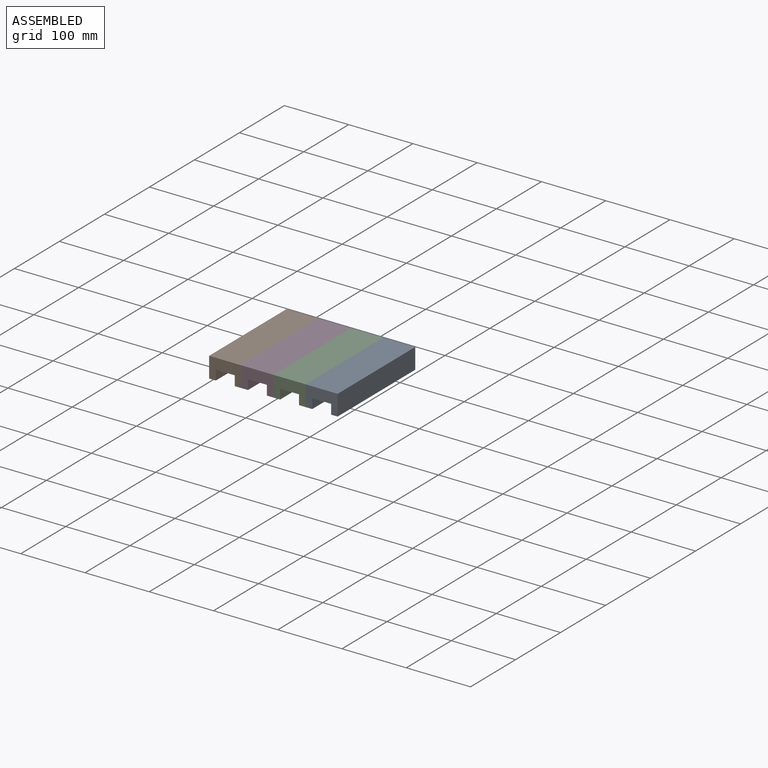
[diagram: assembled view]
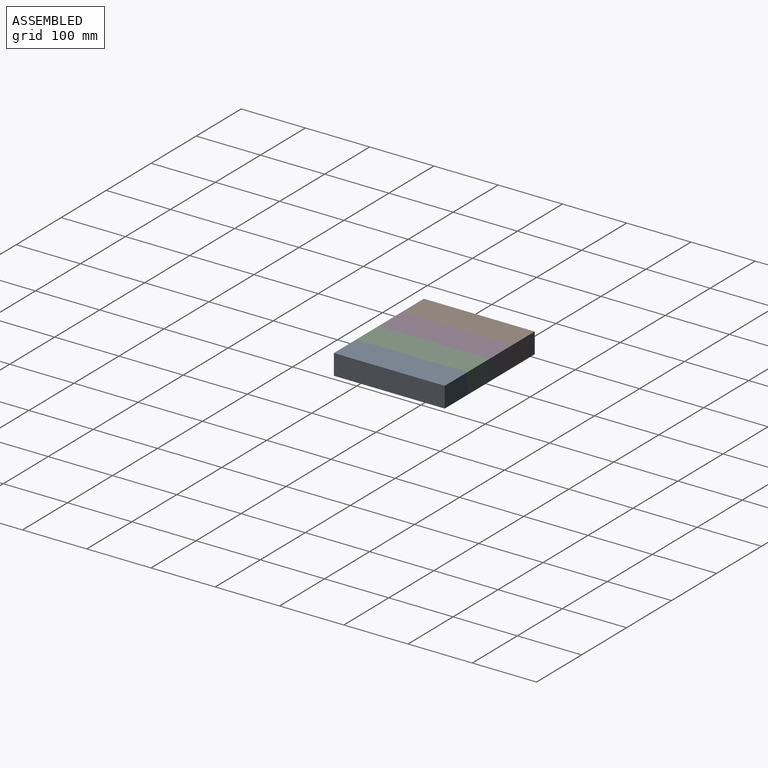
[diagram: assembled view, second angle]
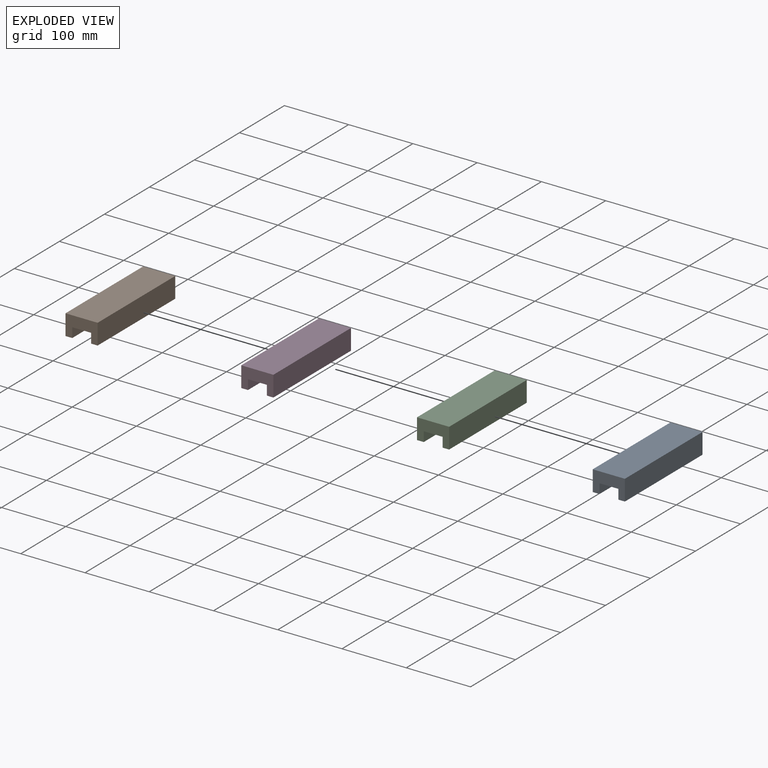
[diagram: exploded view]
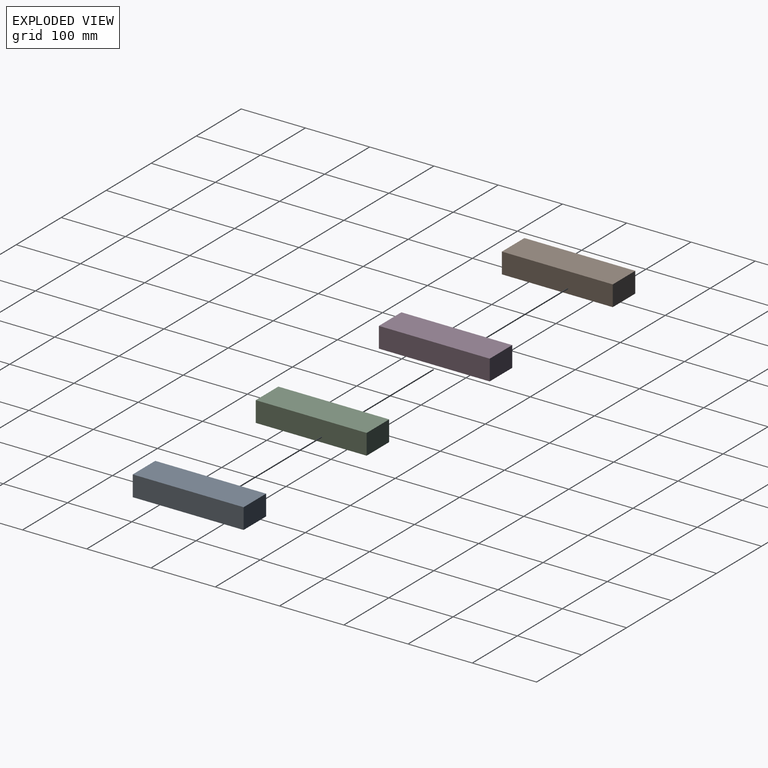
[diagram: exploded view, second angle]
ASSEMBLY  parts=4 mates=3
PART A: 24 faces, bbox 50x172.5x32 mm
  f0: plane 20.5x20.2mm, normal (0,0,-1), area 412.4mm2, adj f1,f2,f4,f11,f22,f23
  f1: plane 16.2x13.7mm, normal (0,-1,0), area 48.4mm2, adj f0,f5,f15,f16,f17,f22,f23
  f2: plane 18.5x13.7mm, normal (1,0,0), area 253.4mm2, adj f0,f4,f17,f22
  f3: plane 70x29.4mm, normal (0,0,-1), area 2056.3mm2, adj f4,f12,f13,f14,f20,f21
  f4: plane 25.4x15.2mm, normal (0,-1,0), area 109.3mm2, adj f0,f2,f3,f11,f17,f20,f21
  f5: cylinder r=7.8mm len=77mm, axis (0,1,0), area 1878mm2, adj f1,f6,f15,f16,f18,f19
  f6: plane 12.8x11.6mm, normal (0,-1,0), area 139.3mm2, adj f5,f17,f18,f19
  f7: plane 172.5x50mm, normal (0,0,1), area 8625mm2, adj f8,f9,f10,f14
  f8: plane 172.5x32mm, normal (-1,0,0), area 5520mm2, adj f7,f10,f14,f17
  f9: plane 172.5x32mm, normal (1,0,0), area 5520mm2, adj f7,f10,f14,f17
  f10: plane 50x32mm, normal (0,1,0), area 1600mm2, adj f7,f8,f9,f17
  f11: plane 18.5x13.7mm, normal (-1,0,0), area 253.4mm2, adj f0,f4,f17,f23
  f12: plane 68x15.2mm, normal (-1,0,0), area 1033.5mm2, adj f3,f14,f17,f20
  f13: plane 68x15.2mm, normal (1,0,0), area 1033.5mm2, adj f3,f14,f17,f21
  f14: plane 50x32mm, normal (0,-1,0), area 1153.2mm2, adj f3,f7,f8,f9,f12,f13,f17
  f15: plane 75x5mm, normal (-1,0,0), area 375mm2, adj f1,f5,f17,f19
  f16: plane 75x5mm, normal (1,0,0), area 375mm2, adj f1,f5,f17,f18
  f17: plane 172.5x50mm, normal (0,0,-1), area 4956.9mm2, adj f1,f2,f4,f6,f8,f9,f10,f11
  f18: cylinder r=2mm len=10.22mm, axis (0,0,-1), area 24.6mm2, adj f5,f6,f16,f17
  f19: cylinder r=2mm len=10.22mm, axis (0,0,-1), area 24.6mm2, adj f5,f6,f15,f17
  f20: cylinder r=2mm len=15.2mm, axis (0,0,-1), area 47.7mm2, adj f3,f4,f12,f17
  f21: cylinder r=2mm len=15.2mm, axis (0,0,-1), area 47.7mm2, adj f3,f4,f13,f17
  f22: cylinder r=2mm len=13.7mm, axis (0,0,-1), area 43mm2, adj f0,f1,f2,f17
  f23: cylinder r=2mm len=13.7mm, axis (0,0,-1), area 43mm2, adj f0,f1,f11,f17
PART B: same geometry as A
PART C: same geometry as A
PART D: same geometry as A
PLACE A t=(-51.37,36.01,-36.53)mm
PLACE B t=(-201.37,36.01,-36.53)mm
PLACE C t=(-101.37,36.01,-36.53)mm
PLACE D t=(-151.37,36.01,-36.53)mm
MATE planar B.f9 <-> D.f8  axis (1,0,0) through (-151.37,-50.24,-52.53)mm
MATE planar C.f9 <-> A.f8  axis (1,0,0) through (-51.37,-50.24,-52.53)mm
MATE planar D.f9 <-> C.f8  axis (1,0,0) through (-101.37,-50.24,-52.53)mm
